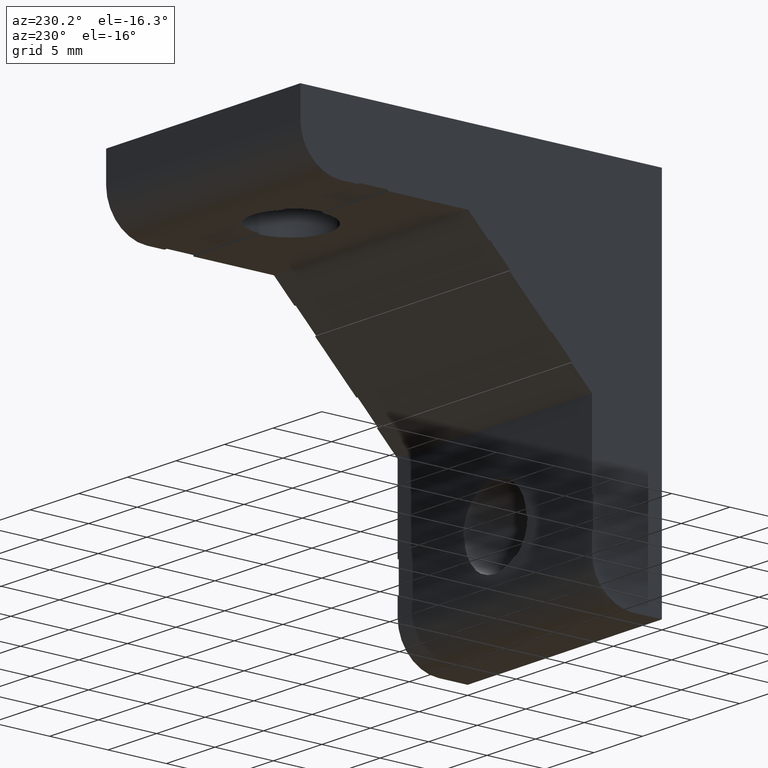
[diagram: clean part render]
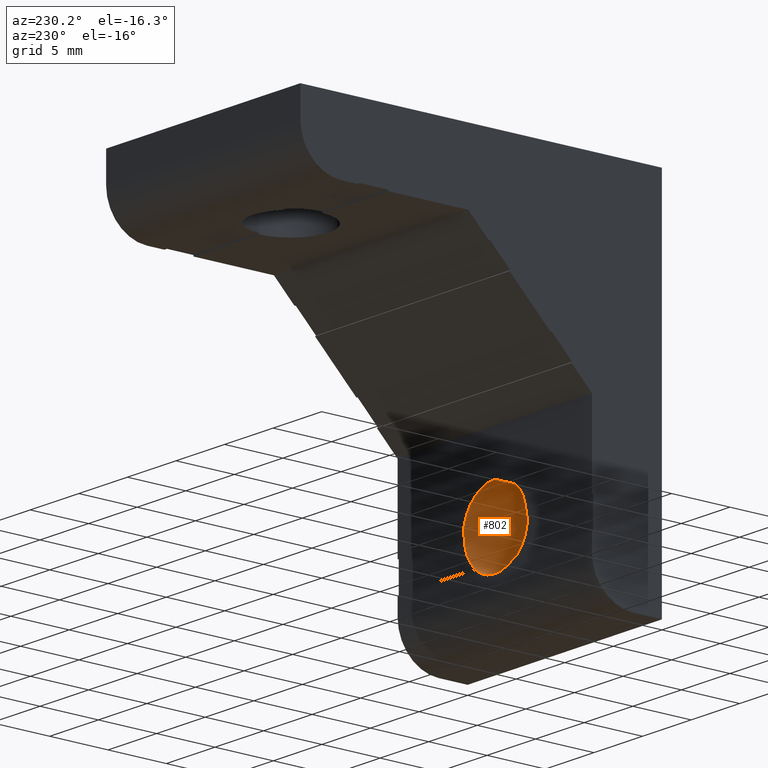
[diagram: same view with one face highlighted and labeled with its STEP entity id]
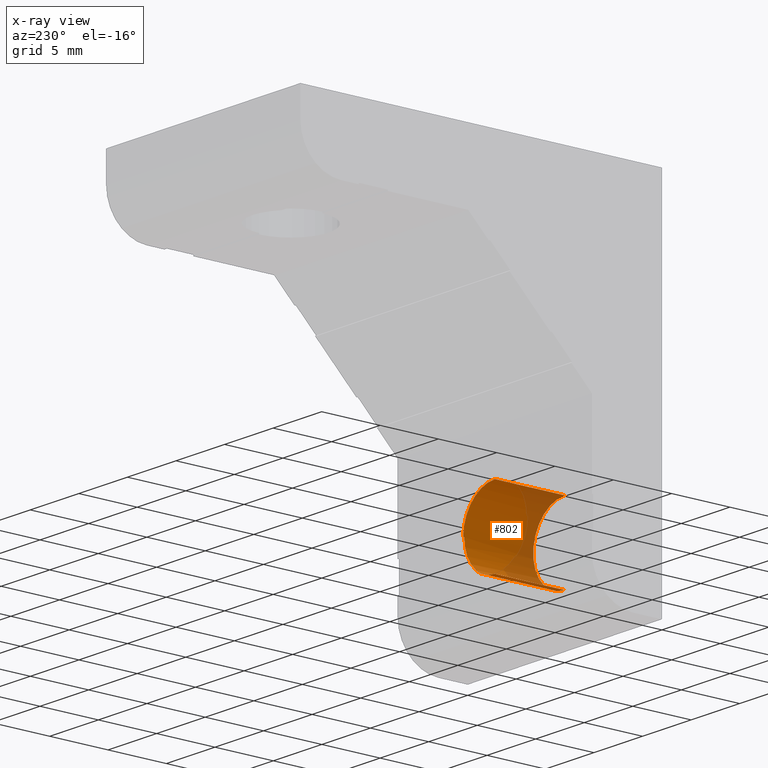
[diagram: x-ray of the same camera — body ghosted, the highlighted face saturated]
A machine part, auxiliary view. The second image highlights one B-rep face of the part: STEP entity #802.
The next image is the same camera in x-ray: the body ghosted, the highlighted face saturated — about 29% of this face is hidden behind the body in this view.
In plain terms, the highlighted cylindrical surface (partial cylindrical patch) has radius 3.25 mm, axis along (-0, 1, 0).
Its self-contained STEP definition (entity closure, byte-faithful):
#3 = EDGE_CURVE ( 'NONE', #1030, #1029, #87, .T. ) ;
#4 = EDGE_CURVE ( 'NONE', #1037, #1043, #89, .T. ) ;
#14 = EDGE_CURVE ( 'NONE', #1029, #1035, #175, .T. ) ;
#62 = ORIENTED_EDGE ( 'NONE', *, *, #249, .T. ) ;
#87 = LINE ( 'NONE', #1095, #88 ) ;
#88 = VECTOR ( 'NONE', #1096, 1000.000000000000000 ) ;
#89 = LINE ( 'NONE', #1097, #90 ) ;
#90 = VECTOR ( 'NONE', #1098, 1000.000000000000000 ) ;
#158 = FACE_OUTER_BOUND ( 'NONE', #1178, .T. ) ;
#159 = CYLINDRICAL_SURFACE ( 'NONE', #307, 3.249999999999999600 ) ;
#175 = CIRCLE ( 'NONE', #290, 3.249999999999999600 ) ;
#193 = CIRCLE ( 'NONE', #291, 3.249999999999999600 ) ;
#194 = CIRCLE ( 'NONE', #292, 3.249999999999999600 ) ;
#196 = CIRCLE ( 'NONE', #293, 3.249999999999999600 ) ;
#249 = EDGE_CURVE ( 'NONE', #1036, #1037, #193, .T. ) ;
#250 = EDGE_CURVE ( 'NONE', #1043, #1060, #194, .T. ) ;
#251 = EDGE_CURVE ( 'NONE', #1059, #1030, #196, .T. ) ;
#290 = AXIS2_PLACEMENT_3D ( 'NONE', #1120, #1306, #1305 ) ;
#291 = AXIS2_PLACEMENT_3D ( 'NONE', #1285, #1284, #1283 ) ;
#292 = AXIS2_PLACEMENT_3D ( 'NONE', #1282, #1281, #1280 ) ;
#293 = AXIS2_PLACEMENT_3D ( 'NONE', #1277, #1279, #1276 ) ;
#307 = AXIS2_PLACEMENT_3D ( 'NONE', #706, #707, #708 ) ;
#365 = CARTESIAN_POINT ( 'NONE',  ( 13.25000000000000200, 3.000000000000000000, -23.50000000066658500 ) ) ;
#366 = DIRECTION ( 'NONE',  ( -0.0000000000000000000, -1.000000000000000000, -0.0000000000000000000 ) ) ;
#375 = CARTESIAN_POINT ( 'NONE',  ( 10.00000000000000000, 0.0000000000000000000, -26.75000000000000000 ) ) ;
#376 = DIRECTION ( 'NONE',  ( -0.0000000000000000000, 1.000000000000000000, 0.0000000000000000000 ) ) ;
#539 = CARTESIAN_POINT ( 'NONE',  ( 12.07665596574581600, 6.000000000000000000, -25.99999999998646400 ) ) ;
#540 = CARTESIAN_POINT ( 'NONE',  ( 12.07665596574581600, 5.899999999000000300, -25.99999999999323200 ) ) ;
#545 = CARTESIAN_POINT ( 'NONE',  ( 10.00000000000000000, 6.000000000000000000, -26.75000000000000000 ) ) ;
#546 = CARTESIAN_POINT ( 'NONE',  ( 10.00000000000000000, 0.0000000000000000000, -26.75000000000000000 ) ) ;
#547 = CARTESIAN_POINT ( 'NONE',  ( 10.00000000000000000, 0.0000000000000000000, -20.25000000000000000 ) ) ;
#553 = CARTESIAN_POINT ( 'NONE',  ( 10.00000000000000000, 6.000000000000000000, -20.25000000000000000 ) ) ;
#569 = CARTESIAN_POINT ( 'NONE',  ( 13.25000000000000200, 5.899999999000000300, -23.50000000016664400 ) ) ;
#570 = CARTESIAN_POINT ( 'NONE',  ( 13.25000000000000200, 6.000000000000000000, -23.50000000033329100 ) ) ;
#706 = CARTESIAN_POINT ( 'NONE',  ( 10.00000000000000000, 0.0000000000000000000, -23.50000000000000000 ) ) ;
#707 = DIRECTION ( 'NONE',  ( -0.0000000000000000000, 1.000000000000000000, 0.0000000000000000000 ) ) ;
#708 = DIRECTION ( 'NONE',  ( 0.0000000000000000000, 0.0000000000000000000, 1.000000000000000000 ) ) ;
#727 = VECTOR ( 'NONE', #366, 1000.000000000000000 ) ;
#732 = LINE ( 'NONE', #375, #733 ) ;
#733 = VECTOR ( 'NONE', #376, 1000.000000000000000 ) ;
#802 = ADVANCED_FACE ( 'NONE', ( #158 ), #159, .F. ) ;
#942 = LINE ( 'NONE', #365, #727 ) ;
#944 = ORIENTED_EDGE ( 'NONE', *, *, #1310, .F. ) ;
#970 = ORIENTED_EDGE ( 'NONE', *, *, #14, .T. ) ;
#971 = ORIENTED_EDGE ( 'NONE', *, *, #3, .T. ) ;
#972 = ORIENTED_EDGE ( 'NONE', *, *, #251, .T. ) ;
#973 = ORIENTED_EDGE ( 'NONE', *, *, #1132, .T. ) ;
#974 = ORIENTED_EDGE ( 'NONE', *, *, #250, .T. ) ;
#975 = ORIENTED_EDGE ( 'NONE', *, *, #4, .T. ) ;
#1029 = VERTEX_POINT ( 'NONE', #539 ) ;
#1030 = VERTEX_POINT ( 'NONE', #540 ) ;
#1035 = VERTEX_POINT ( 'NONE', #545 ) ;
#1036 = VERTEX_POINT ( 'NONE', #546 ) ;
#1037 = VERTEX_POINT ( 'NONE', #547 ) ;
#1043 = VERTEX_POINT ( 'NONE', #553 ) ;
#1059 = VERTEX_POINT ( 'NONE', #569 ) ;
#1060 = VERTEX_POINT ( 'NONE', #570 ) ;
#1095 = CARTESIAN_POINT ( 'NONE',  ( 12.07665596576211800, 3.000000000000000000, -25.99999999997292500 ) ) ;
#1096 = DIRECTION ( 'NONE',  ( 0.0000000000000000000, 1.000000000000000000, 0.0000000000000000000 ) ) ;
#1097 = CARTESIAN_POINT ( 'NONE',  ( 10.00000000000000000, 0.0000000000000000000, -20.25000000000000000 ) ) ;
#1098 = DIRECTION ( 'NONE',  ( -0.0000000000000000000, 1.000000000000000000, 0.0000000000000000000 ) ) ;
#1120 = CARTESIAN_POINT ( 'NONE',  ( 10.00000000000000000, 6.000000000000000000, -23.50000000000000000 ) ) ;
#1132 = EDGE_CURVE ( 'NONE', #1060, #1059, #942, .T. ) ;
#1178 = EDGE_LOOP ( 'NONE', ( #944, #62, #975, #974, #973, #972, #971, #970 ) ) ;
#1276 = DIRECTION ( 'NONE',  ( 0.0000000000000000000, 0.0000000000000000000, 1.000000000000000000 ) ) ;
#1277 = CARTESIAN_POINT ( 'NONE',  ( 10.00000000000000000, 5.899999998000000200, -23.50000000000000000 ) ) ;
#1279 = DIRECTION ( 'NONE',  ( -0.0000000000000000000, 1.000000000000000000, 0.0000000000000000000 ) ) ;
#1280 = DIRECTION ( 'NONE',  ( 0.0000000000000000000, 0.0000000000000000000, 1.000000000000000000 ) ) ;
#1281 = DIRECTION ( 'NONE',  ( -0.0000000000000000000, 1.000000000000000000, 0.0000000000000000000 ) ) ;
#1282 = CARTESIAN_POINT ( 'NONE',  ( 10.00000000000000000, 6.000000000000000000, -23.50000000000000000 ) ) ;
#1283 = DIRECTION ( 'NONE',  ( 0.0000000000000000000, 0.0000000000000000000, 1.000000000000000000 ) ) ;
#1284 = DIRECTION ( 'NONE',  ( 0.0000000000000000000, -1.000000000000000000, -0.0000000000000000000 ) ) ;
#1285 = CARTESIAN_POINT ( 'NONE',  ( 10.00000000000000000, 0.0000000000000000000, -23.50000000000000000 ) ) ;
#1305 = DIRECTION ( 'NONE',  ( 0.0000000000000000000, 0.0000000000000000000, 1.000000000000000000 ) ) ;
#1306 = DIRECTION ( 'NONE',  ( -0.0000000000000000000, 1.000000000000000000, 0.0000000000000000000 ) ) ;
#1310 = EDGE_CURVE ( 'NONE', #1036, #1035, #732, .T. ) ;